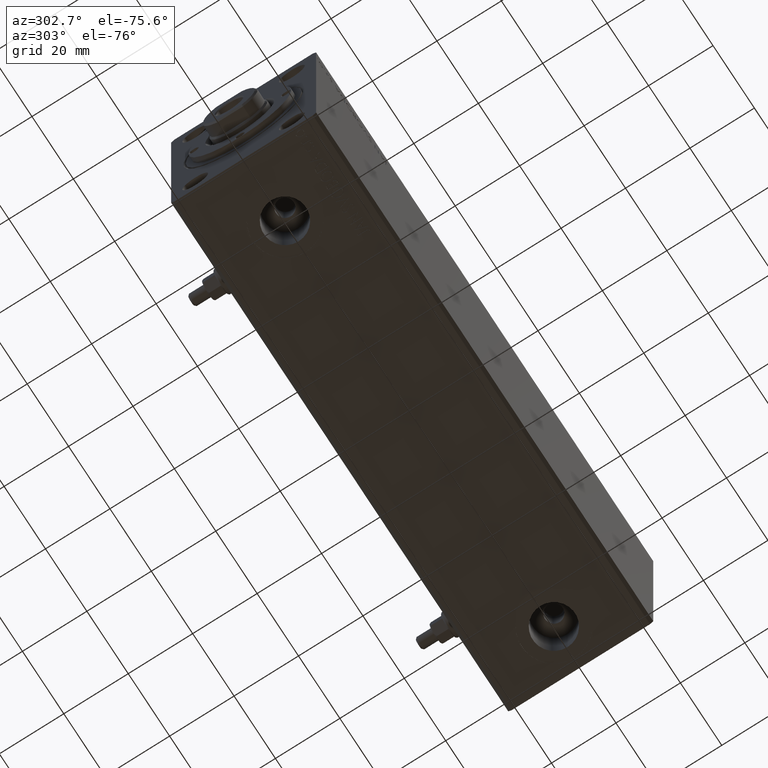
[diagram: clean part render]
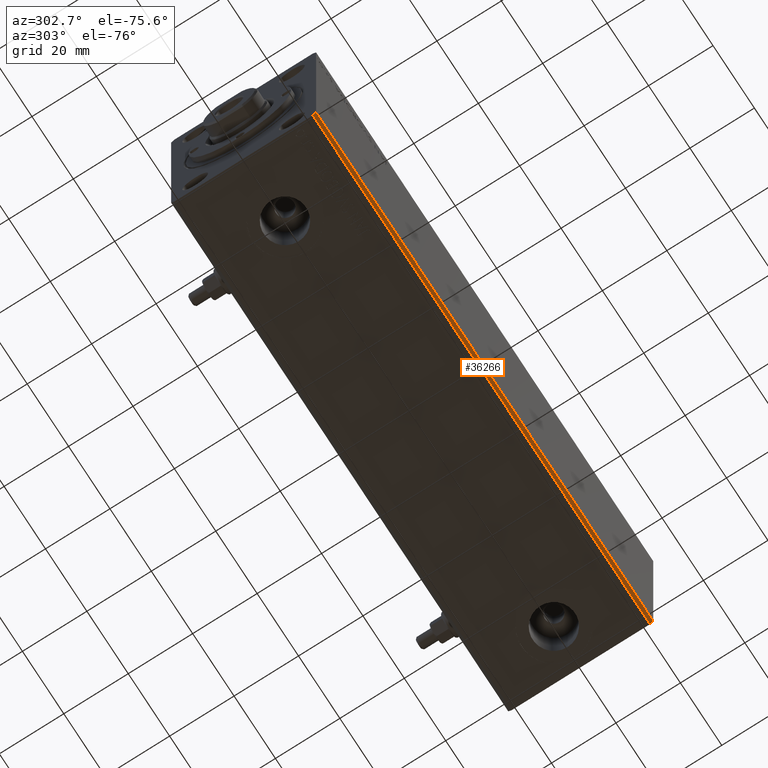
[diagram: same view with one face highlighted and labeled with its STEP entity id]
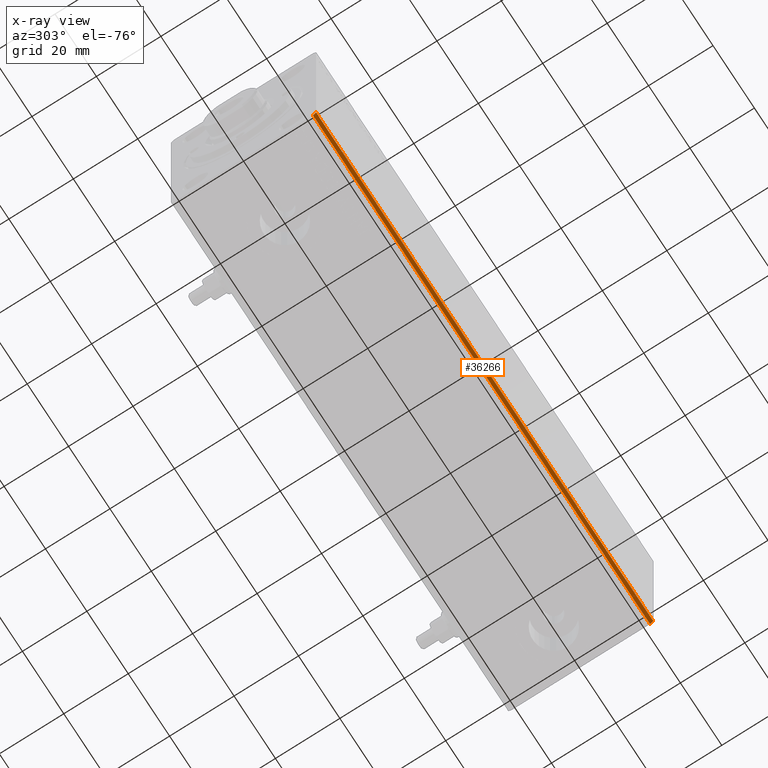
[diagram: x-ray of the same camera — body ghosted, the highlighted face saturated]
A machine part, auxiliary view. The second image highlights one B-rep face of the part: STEP entity #36266.
The next image is the same camera in x-ray: the body ghosted, the highlighted face saturated — about 0% of this face is hidden behind the body in this view.
In plain terms, the highlighted planar face has unit normal (0, 0.7071, 0.7071).
Its self-contained STEP definition (entity closure, byte-faithful):
#272 = LINE ( 'NONE', #28179, #38445 ) ;
#1379 = ORIENTED_EDGE ( 'NONE', *, *, #11526, .F. ) ;
#2388 = CARTESIAN_POINT ( 'NONE',  ( 163.0000000000000000, -22.50000000000001421, -31.50000000000000711 ) ) ;
#4577 = CARTESIAN_POINT ( 'NONE',  ( 163.0000000000000000, -21.50000000000001776, -32.50000000000000711 ) ) ;
#5474 = LINE ( 'NONE', #26973, #7633 ) ;
#7633 = VECTOR ( 'NONE', #19663, 1000.000000000000114 ) ;
#11526 = EDGE_CURVE ( 'NONE', #20789, #13216, #18759, .T. ) ;
#12715 = CARTESIAN_POINT ( 'NONE',  ( 0.000000000000000000, -21.50000000000001776, -32.50000000000000711 ) ) ;
#13216 = VERTEX_POINT ( 'NONE', #12715 ) ;
#14558 = EDGE_CURVE ( 'NONE', #38702, #18666, #18360, .T. ) ;
#14829 = DIRECTION ( 'NONE',  ( -0.000000000000000000, 0.7071067811865500152, 0.7071067811865451302 ) ) ;
#15177 = CARTESIAN_POINT ( 'NONE',  ( 163.0000000000000000, -21.50000000000001776, -32.50000000000000711 ) ) ;
#15340 = DIRECTION ( 'NONE',  ( -1.000000000000000000, -0.000000000000000000, -0.000000000000000000 ) ) ;
#16613 = AXIS2_PLACEMENT_3D ( 'NONE', #38568, #14829, #18251 ) ;
#18251 = DIRECTION ( 'NONE',  ( 0.000000000000000000, -0.7071067811865451302, 0.7071067811865500152 ) ) ;
#18360 = LINE ( 'NONE', #35471, #24669 ) ;
#18666 = VERTEX_POINT ( 'NONE', #30867 ) ;
#18759 = LINE ( 'NONE', #4577, #40630 ) ;
#19663 = DIRECTION ( 'NONE',  ( 0.000000000000000000, 0.7071067811865451302, -0.7071067811865500152 ) ) ;
#20564 = ORIENTED_EDGE ( 'NONE', *, *, #14558, .T. ) ;
#20789 = VERTEX_POINT ( 'NONE', #15177 ) ;
#21711 = ORIENTED_EDGE ( 'NONE', *, *, #38395, .T. ) ;
#23755 = FACE_OUTER_BOUND ( 'NONE', #39109, .T. ) ;
#24669 = VECTOR ( 'NONE', #29089, 1000.000000000000000 ) ;
#24752 = DIRECTION ( 'NONE',  ( 0.000000000000000000, 0.7071067811865451302, -0.7071067811865500152 ) ) ;
#26973 = CARTESIAN_POINT ( 'NONE',  ( 0.000000000000000000, -22.50000000000001421, -31.50000000000000711 ) ) ;
#28179 = CARTESIAN_POINT ( 'NONE',  ( 163.0000000000000000, -22.50000000000001421, -31.50000000000000711 ) ) ;
#29089 = DIRECTION ( 'NONE',  ( -1.000000000000000000, -0.000000000000000000, -0.000000000000000000 ) ) ;
#30867 = CARTESIAN_POINT ( 'NONE',  ( 0.000000000000000000, -22.50000000000001421, -31.50000000000000711 ) ) ;
#35120 = EDGE_CURVE ( 'NONE', #38702, #20789, #272, .T. ) ;
#35471 = CARTESIAN_POINT ( 'NONE',  ( 163.0000000000000000, -22.50000000000001421, -31.50000000000000711 ) ) ;
#36266 = ADVANCED_FACE ( 'NONE', ( #23755 ), #37669, .F. ) ;
#37669 = PLANE ( 'NONE',  #16613 ) ;
#38395 = EDGE_CURVE ( 'NONE', #18666, #13216, #5474, .T. ) ;
#38445 = VECTOR ( 'NONE', #24752, 1000.000000000000114 ) ;
#38568 = CARTESIAN_POINT ( 'NONE',  ( 163.0000000000000000, -22.50000000000001421, -31.50000000000000711 ) ) ;
#38702 = VERTEX_POINT ( 'NONE', #2388 ) ;
#39109 = EDGE_LOOP ( 'NONE', ( #21711, #1379, #44646, #20564 ) ) ;
#40630 = VECTOR ( 'NONE', #15340, 1000.000000000000000 ) ;
#44646 = ORIENTED_EDGE ( 'NONE', *, *, #35120, .F. ) ;